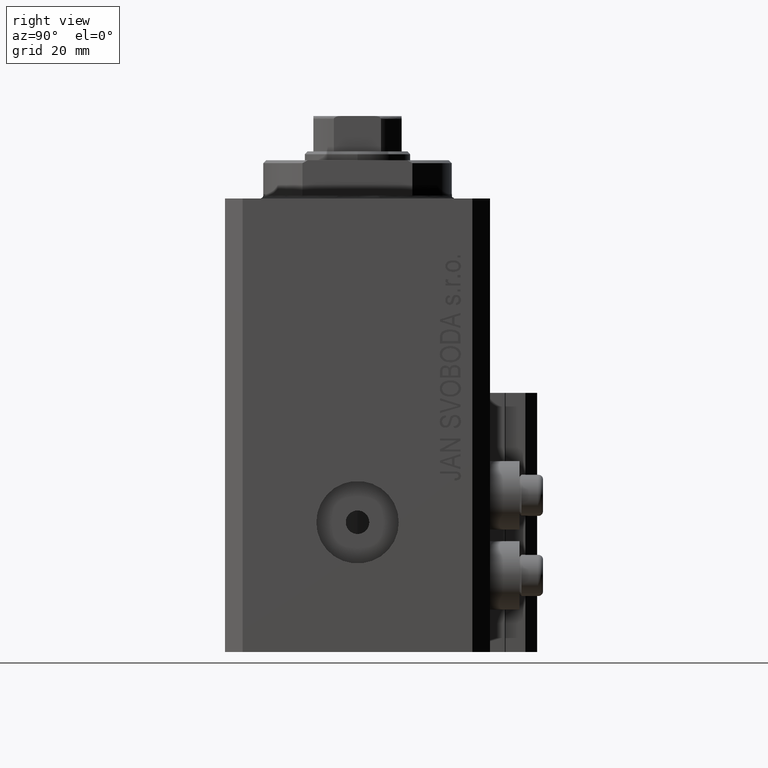
[diagram: clean part render]
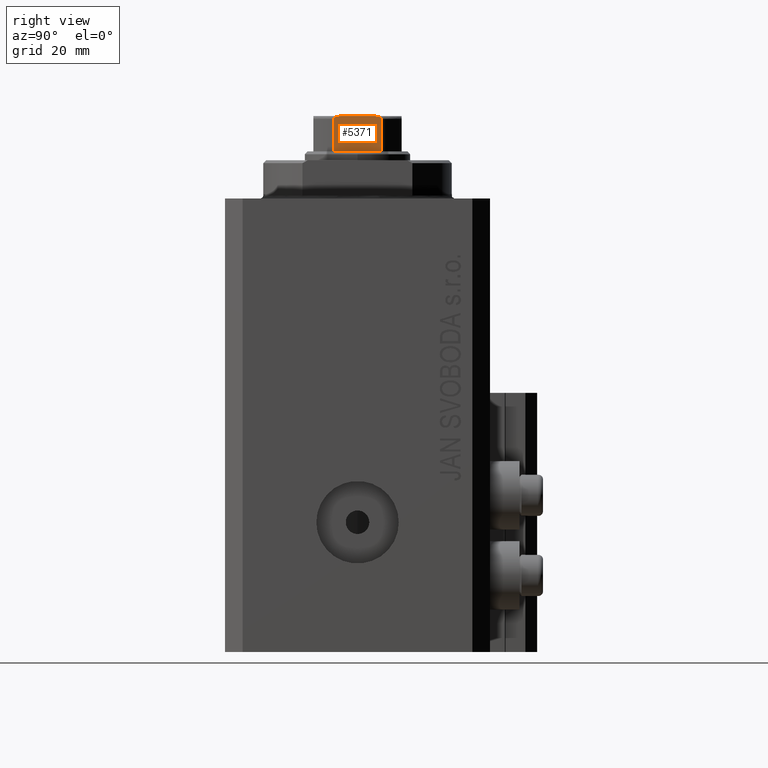
[diagram: same view with one face highlighted and labeled with its STEP entity id]
A machine part, right view. The second image highlights one B-rep face of the part: STEP entity #5371.
In plain terms, the highlighted planar face has unit normal (-1, 0, 0).
Its self-contained STEP definition (entity closure, byte-faithful):
#448 = ORIENTED_EDGE ( 'NONE', *, *, #32714, .T. ) ;
#1434 = DIRECTION ( 'NONE',  ( 1.156482317317871478E-16, 1.000000000000000000, -0.000000000000000000 ) ) ;
#1875 = DIRECTION ( 'NONE',  ( -1.000000000000000000, 1.156482317317871478E-16, 0.000000000000000000 ) ) ;
#1907 = CARTESIAN_POINT ( 'NONE',  ( 7.500000000000000000, -4.000000000000002665, -0.001000000000001000089 ) ) ;
#2434 = CARTESIAN_POINT ( 'NONE',  ( 7.500000000000001776, -3.020030562295400234, 84.10000000000000853 ) ) ;
#2789 = CARTESIAN_POINT ( 'NONE',  ( 7.500000000000000888, 3.858352854028593182, 83.85117951603153585 ) ) ;
#3142 = CARTESIAN_POINT ( 'NONE',  ( 7.500000000000000000, -3.710689790367151630, 83.94812118173425119 ) ) ;
#4684 = CARTESIAN_POINT ( 'NONE',  ( 7.500000000000001776, 7.500000000000000000, 78.10000000000000853 ) ) ;
#5371 = ADVANCED_FACE ( 'NONE', ( #19893 ), #16511, .F. ) ;
#6040 = CARTESIAN_POINT ( 'NONE',  ( 7.500000000000000888, -2.783882181415009427, 84.10000000000000853 ) ) ;
#6154 = CARTESIAN_POINT ( 'NONE',  ( 7.500000000000001776, 3.999999999999998224, 83.60000000000000853 ) ) ;
#7343 = B_SPLINE_CURVE_WITH_KNOTS ( 'NONE', 3,
 ( #6154, #31846, #27768, #21515, #2789, #32326, #17447, #46724, #32557, #24161 ),
 .UNSPECIFIED., .F., .F.,
 ( 4, 2, 2, 2, 4 ),
 ( 0.000000000000000000, 0.0001779688448868775293, 0.0003559376897737542996, 0.0007118753795475305001, 0.001423750759095082901 ),
 .UNSPECIFIED. ) ;
#9214 = EDGE_CURVE ( 'NONE', #28204, #40781, #23977, .T. ) ;
#9317 = CARTESIAN_POINT ( 'NONE',  ( 7.500000000000000888, 2.783882181415007206, 84.10000000000000853 ) ) ;
#9398 = EDGE_LOOP ( 'NONE', ( #15197, #16304, #37924, #16233, #448, #16134 ) ) ;
#9512 = VECTOR ( 'NONE', #19332, 1000.000000000000000 ) ;
#10880 = CARTESIAN_POINT ( 'NONE',  ( 7.500000000000000000, -4.000000000000002665, 83.60000000000000853 ) ) ;
#11461 = VECTOR ( 'NONE', #16546, 1000.000000000000000 ) ;
#14078 = VERTEX_POINT ( 'NONE', #42917 ) ;
#14420 = CARTESIAN_POINT ( 'NONE',  ( 7.500000000000000000, -4.000000000000002665, 83.60000000000000853 ) ) ;
#15197 = ORIENTED_EDGE ( 'NONE', *, *, #9214, .F. ) ;
#16134 = ORIENTED_EDGE ( 'NONE', *, *, #32433, .T. ) ;
#16233 = ORIENTED_EDGE ( 'NONE', *, *, #19093, .T. ) ;
#16304 = ORIENTED_EDGE ( 'NONE', *, *, #39644, .T. ) ;
#16508 = CARTESIAN_POINT ( 'NONE',  ( 7.500000000000001776, 3.999999999999998224, 78.10000000000005116 ) ) ;
#16511 = PLANE ( 'NONE',  #28877 ) ;
#16546 = DIRECTION ( 'NONE',  ( -0.000000000000000000, -0.000000000000000000, 1.000000000000000000 ) ) ;
#17447 = CARTESIAN_POINT ( 'NONE',  ( 7.500000000000000888, 3.597188386589924569, 83.99052843393239698 ) ) ;
#19093 = EDGE_CURVE ( 'NONE', #42017, #46607, #40708, .T. ) ;
#19332 = DIRECTION ( 'NONE',  ( 1.156482317317871478E-16, 1.000000000000000000, -0.000000000000000000 ) ) ;
#19893 = FACE_OUTER_BOUND ( 'NONE', #9398, .T. ) ;
#20149 = LINE ( 'NONE', #1907, #11461 ) ;
#20921 = CARTESIAN_POINT ( 'NONE',  ( 7.500000000000001776, -3.904072061442343866, 83.81287056890808174 ) ) ;
#21252 = CARTESIAN_POINT ( 'NONE',  ( 7.500000000000000888, -2.783882181415009427, 84.10000000000000853 ) ) ;
#21515 = CARTESIAN_POINT ( 'NONE',  ( 7.500000000000001776, 3.904208668232356683, 83.81278134537497237 ) ) ;
#22843 = VECTOR ( 'NONE', #1434, 1000.000000000000000 ) ;
#23509 = CARTESIAN_POINT ( 'NONE',  ( 7.500000000000001776, 7.500000000000000000, 84.10000000000000853 ) ) ;
#23977 = LINE ( 'NONE', #23509, #22843 ) ;
#24161 = CARTESIAN_POINT ( 'NONE',  ( 7.500000000000000888, 2.783882181415007206, 84.10000000000000853 ) ) ;
#24597 = CARTESIAN_POINT ( 'NONE',  ( 7.500000000000001776, 3.999999999999998224, -0.001000000000001000089 ) ) ;
#27717 = LINE ( 'NONE', #24597, #32787 ) ;
#27768 = CARTESIAN_POINT ( 'NONE',  ( 7.500000000000000888, 3.976018255615929142, 83.71726199300995575 ) ) ;
#28131 = CARTESIAN_POINT ( 'NONE',  ( 7.499999999999999112, -3.975735230428941946, 83.71773041319775643 ) ) ;
#28204 = VERTEX_POINT ( 'NONE', #21252 ) ;
#28877 = AXIS2_PLACEMENT_3D ( 'NONE', #30930, #1875, #38366 ) ;
#30930 = CARTESIAN_POINT ( 'NONE',  ( 7.500000000000001776, 7.500000000000000000, 84.10000000000000853 ) ) ;
#31846 = CARTESIAN_POINT ( 'NONE',  ( 7.500000000000000888, 3.999999999999998224, 83.66026396800438647 ) ) ;
#32326 = CARTESIAN_POINT ( 'NONE',  ( 7.500000000000000888, 3.708875323752952369, 83.94930352055463629 ) ) ;
#32433 = EDGE_CURVE ( 'NONE', #14078, #40781, #7343, .T. ) ;
#32557 = CARTESIAN_POINT ( 'NONE',  ( 7.500000000000001776, 3.020011215871893029, 84.09999999999999432 ) ) ;
#32672 = CARTESIAN_POINT ( 'NONE',  ( 7.500000000000002665, -3.857502111569842018, 83.85173359969212470 ) ) ;
#32714 = EDGE_CURVE ( 'NONE', #46607, #14078, #27717, .T. ) ;
#32787 = VECTOR ( 'NONE', #38756, 1000.000000000000000 ) ;
#32796 = VERTEX_POINT ( 'NONE', #10880 ) ;
#36267 = CARTESIAN_POINT ( 'NONE',  ( 7.500000000000000000, -4.000000000000207834, 83.66034186205210688 ) ) ;
#37924 = ORIENTED_EDGE ( 'NONE', *, *, #40017, .F. ) ;
#38366 = DIRECTION ( 'NONE',  ( -1.156482317317871478E-16, -1.000000000000000000, 0.000000000000000000 ) ) ;
#38756 = DIRECTION ( 'NONE',  ( -0.000000000000000000, -0.000000000000000000, 1.000000000000000000 ) ) ;
#39522 = CARTESIAN_POINT ( 'NONE',  ( 7.500000000000000000, -4.000000000000002665, 78.10000000000005116 ) ) ;
#39644 = EDGE_CURVE ( 'NONE', #28204, #32796, #44703, .T. ) ;
#40017 = EDGE_CURVE ( 'NONE', #42017, #32796, #20149, .T. ) ;
#40708 = LINE ( 'NONE', #4684, #9512 ) ;
#40781 = VERTEX_POINT ( 'NONE', #9317 ) ;
#42017 = VERTEX_POINT ( 'NONE', #39522 ) ;
#42917 = CARTESIAN_POINT ( 'NONE',  ( 7.500000000000001776, 3.999999999999998224, 83.60000000000000853 ) ) ;
#44703 = B_SPLINE_CURVE_WITH_KNOTS ( 'NONE', 3,
 ( #6040, #2434, #47078, #46609, #3142, #32672, #20921, #28131, #36267, #14420 ),
 .UNSPECIFIED., .F., .F.,
 ( 4, 2, 2, 2, 4 ),
 ( 4.336808689942017736E-19, 0.0007049202178653984040, 0.001057380326798102593, 0.001233610381264454254, 0.001409840435730806999 ),
 .UNSPECIFIED. ) ;
#46607 = VERTEX_POINT ( 'NONE', #16508 ) ;
#46609 = CARTESIAN_POINT ( 'NONE',  ( 7.499999999999999112, -3.598393151503776366, 83.99012191927408821 ) ) ;
#46724 = CARTESIAN_POINT ( 'NONE',  ( 7.500000000000001776, 3.254991323038174844, 84.08269028443157822 ) ) ;
#47078 = CARTESIAN_POINT ( 'NONE',  ( 7.500000000000004441, -3.255843148148204413, 84.08262378726875852 ) ) ;